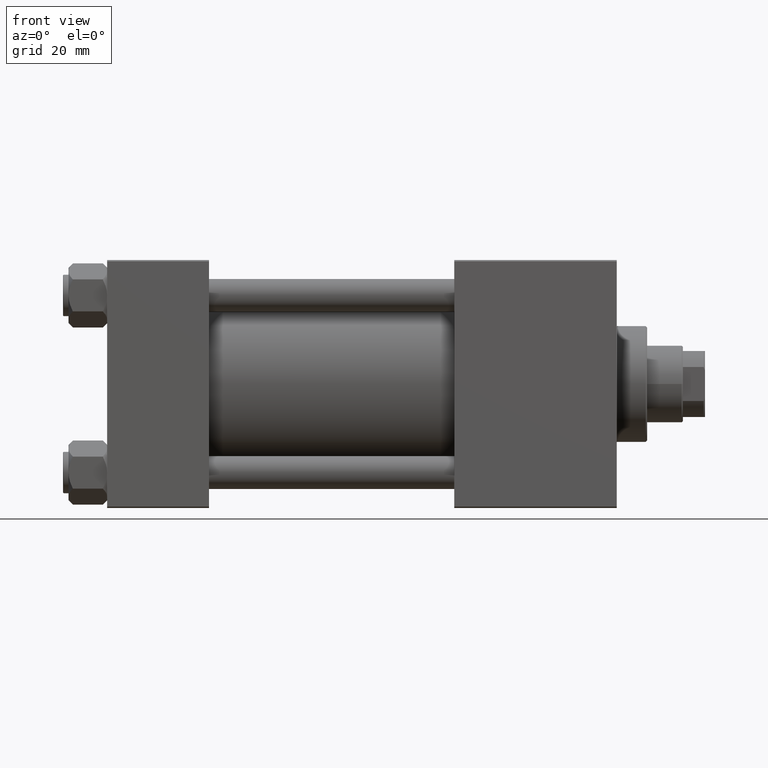
[diagram: clean part render]
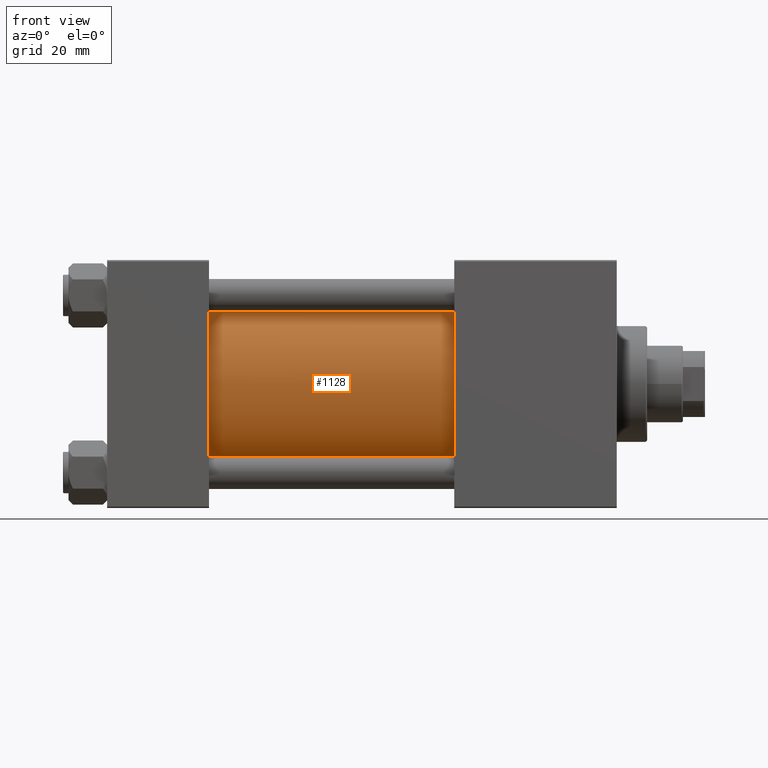
[diagram: same view with one face highlighted and labeled with its STEP entity id]
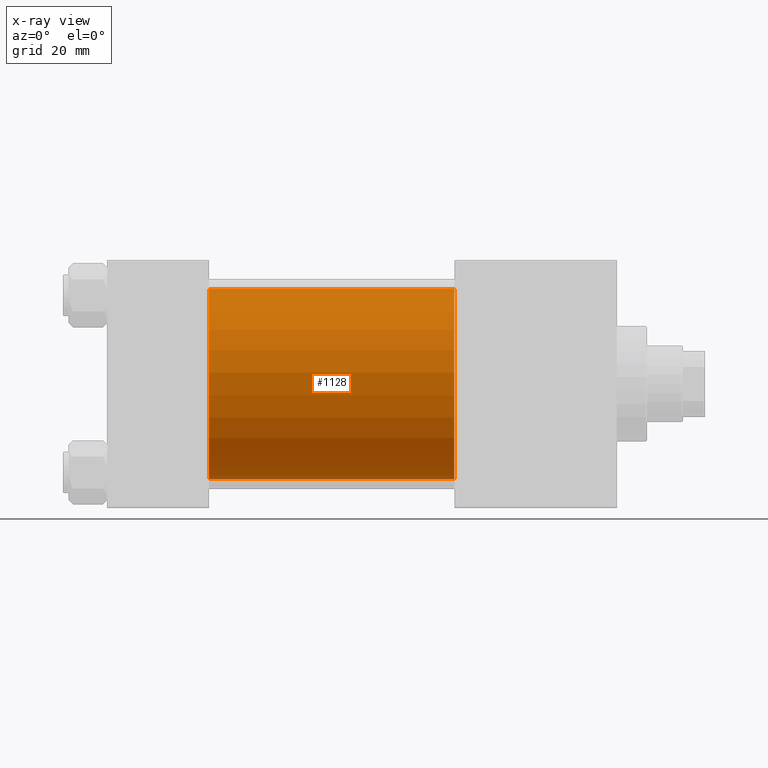
[diagram: x-ray of the same camera — body ghosted, the highlighted face saturated]
A machine part, front view. The second image highlights one B-rep face of the part: STEP entity #1128.
The next image is the same camera in x-ray: the body ghosted, the highlighted face saturated — about 4% of this face is hidden behind the body in this view.
In plain terms, the highlighted cylindrical surface (partial cylindrical patch) has radius 34.5 mm, axis along (-1, -0, -0).
Its self-contained STEP definition (entity closure, byte-faithful):
#1128 = ADVANCED_FACE ( 'NONE', ( #2268 ), #10651, .T. ) ;
#2268 = FACE_OUTER_BOUND ( 'NONE', #5657, .T. ) ;
#4750 = ORIENTED_EDGE ( 'NONE', *, *, #46860, .F. ) ;
#4794 = LINE ( 'NONE', #8357, #23056 ) ;
#5657 = EDGE_LOOP ( 'NONE', ( #43314, #4750, #37960, #19616 ) ) ;
#5687 = DIRECTION ( 'NONE',  ( 1.000000000000000000, -0.000000000000000000, 0.000000000000000000 ) ) ;
#6904 = CARTESIAN_POINT ( 'NONE',  ( 126.0000000000000000, -2.602085213965210642E-15, 34.50000000000000000 ) ) ;
#7312 = EDGE_CURVE ( 'NONE', #12825, #7488, #14699, .T. ) ;
#7488 = VERTEX_POINT ( 'NONE', #14569 ) ;
#8357 = CARTESIAN_POINT ( 'NONE',  ( 126.0000000000000000, 1.622946243093158675E-15, -34.50000000000000000 ) ) ;
#8469 = VERTEX_POINT ( 'NONE', #17209 ) ;
#9009 = DIRECTION ( 'NONE',  ( 1.000000000000000000, 0.000000000000000000, 0.000000000000000000 ) ) ;
#9639 = AXIS2_PLACEMENT_3D ( 'NONE', #44703, #9880, #40901 ) ;
#9880 = DIRECTION ( 'NONE',  ( -1.000000000000000000, -0.000000000000000000, -0.000000000000000000 ) ) ;
#10651 = CYLINDRICAL_SURFACE ( 'NONE', #9639, 34.50000000000000000 ) ;
#12825 = VERTEX_POINT ( 'NONE', #46246 ) ;
#13546 = CARTESIAN_POINT ( 'NONE',  ( 37.00000000000000711, -2.602085213965210642E-15, 0.000000000000000000 ) ) ;
#14335 = EDGE_CURVE ( 'NONE', #21004, #12825, #16164, .T. ) ;
#14569 = CARTESIAN_POINT ( 'NONE',  ( 37.00000000000000711, 1.622946243093158675E-15, -34.50000000000000000 ) ) ;
#14699 = CIRCLE ( 'NONE', #35798, 34.50000000000000000 ) ;
#16164 = LINE ( 'NONE', #43360, #41614 ) ;
#17209 = CARTESIAN_POINT ( 'NONE',  ( 126.0000000000000000, 1.622946243093158675E-15, -34.50000000000000000 ) ) ;
#19616 = ORIENTED_EDGE ( 'NONE', *, *, #7312, .T. ) ;
#21004 = VERTEX_POINT ( 'NONE', #6904 ) ;
#21199 = DIRECTION ( 'NONE',  ( 0.000000000000000000, 0.000000000000000000, 1.000000000000000000 ) ) ;
#23056 = VECTOR ( 'NONE', #23896, 1000.000000000000000 ) ;
#23896 = DIRECTION ( 'NONE',  ( -1.000000000000000000, -0.000000000000000000, -0.000000000000000000 ) ) ;
#24299 = DIRECTION ( 'NONE',  ( 0.000000000000000000, 0.000000000000000000, -1.000000000000000000 ) ) ;
#29507 = CIRCLE ( 'NONE', #37619, 34.50000000000000000 ) ;
#35709 = CARTESIAN_POINT ( 'NONE',  ( 126.0000000000000000, -2.602085213965210642E-15, 0.000000000000000000 ) ) ;
#35798 = AXIS2_PLACEMENT_3D ( 'NONE', #13546, #5687, #21199 ) ;
#37619 = AXIS2_PLACEMENT_3D ( 'NONE', #35709, #9009, #24299 ) ;
#37960 = ORIENTED_EDGE ( 'NONE', *, *, #14335, .T. ) ;
#39295 = DIRECTION ( 'NONE',  ( -1.000000000000000000, -0.000000000000000000, -0.000000000000000000 ) ) ;
#40901 = DIRECTION ( 'NONE',  ( 0.000000000000000000, 0.000000000000000000, 1.000000000000000000 ) ) ;
#41614 = VECTOR ( 'NONE', #39295, 1000.000000000000000 ) ;
#43314 = ORIENTED_EDGE ( 'NONE', *, *, #48650, .F. ) ;
#43360 = CARTESIAN_POINT ( 'NONE',  ( 126.0000000000000000, -2.602085213965210642E-15, 34.50000000000000000 ) ) ;
#44703 = CARTESIAN_POINT ( 'NONE',  ( 126.0000000000000000, -2.602085213965210642E-15, 0.000000000000000000 ) ) ;
#46246 = CARTESIAN_POINT ( 'NONE',  ( 37.00000000000000711, -2.602085213965210642E-15, 34.50000000000000000 ) ) ;
#46860 = EDGE_CURVE ( 'NONE', #21004, #8469, #29507, .T. ) ;
#48650 = EDGE_CURVE ( 'NONE', #8469, #7488, #4794, .T. ) ;